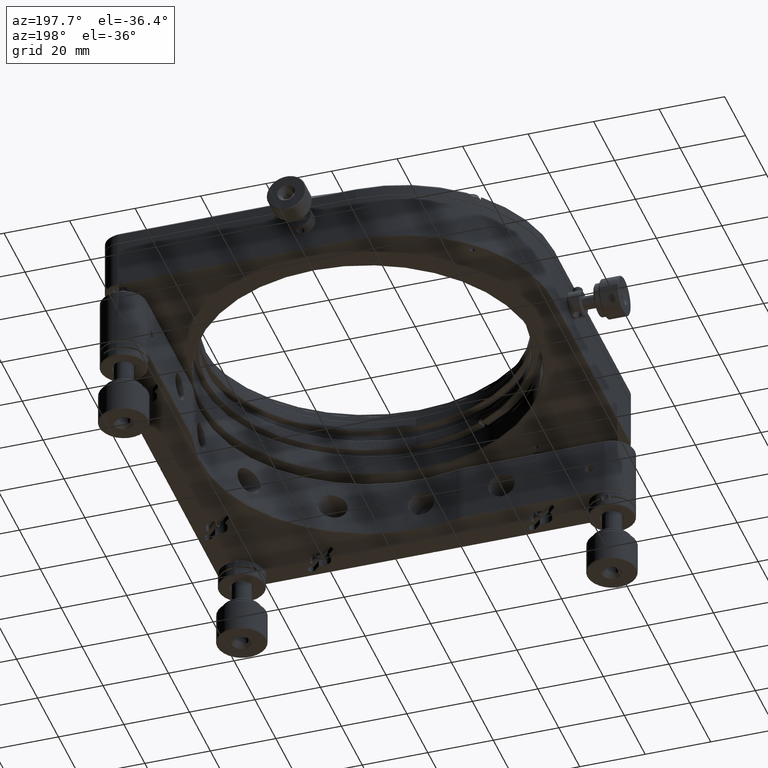
[diagram: clean part render]
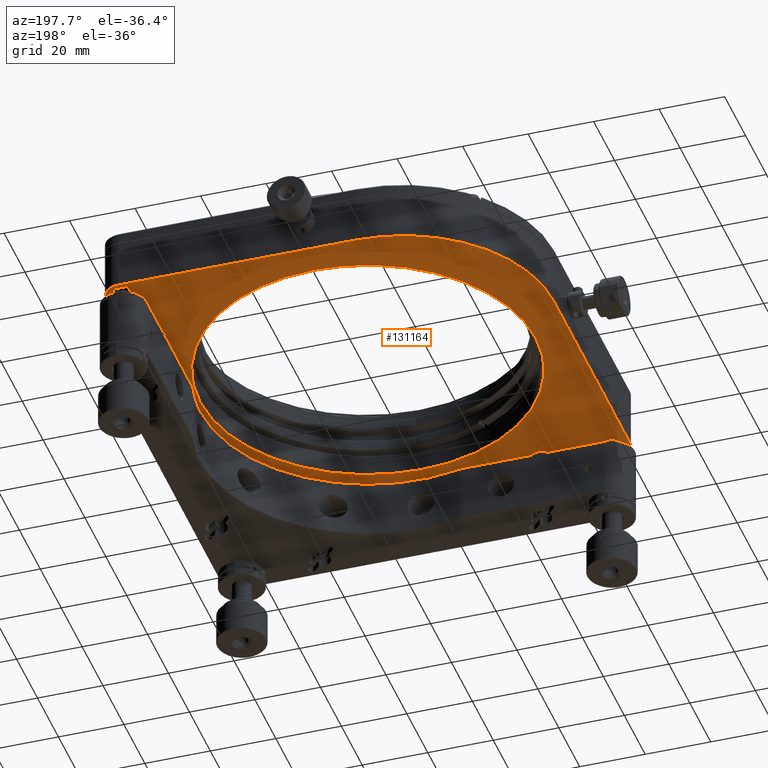
[diagram: same view with one face highlighted and labeled with its STEP entity id]
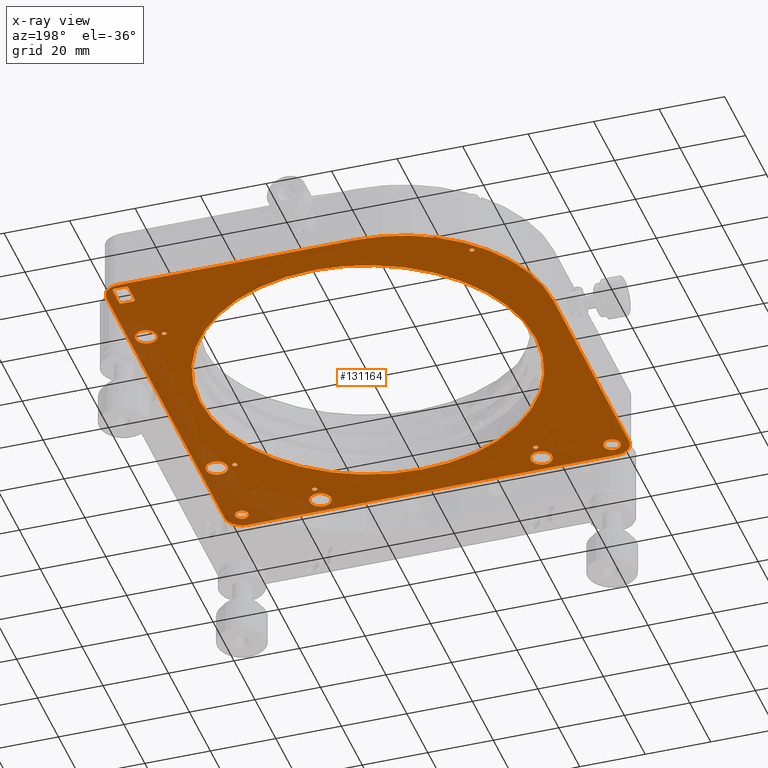
[diagram: x-ray of the same camera — body ghosted, the highlighted face saturated]
A machine part, auxiliary view. The second image highlights one B-rep face of the part: STEP entity #131164.
The next image is the same camera in x-ray: the body ghosted, the highlighted face saturated — about 14% of this face is hidden behind the body in this view.
In plain terms, the highlighted planar face has unit normal (-0, -0, 1).
Its self-contained STEP definition (entity closure, byte-faithful):
#696 = CIRCLE ( 'NONE', #7999, 0.7500000000000006661 ) ;
#2039 = ORIENTED_EDGE ( 'NONE', *, *, #21262, .F. ) ;
#2081 = EDGE_CURVE ( 'NONE', #71721, #77084, #117723, .T. ) ;
#2841 = CARTESIAN_POINT ( 'NONE',  ( 51.74999999999884892, 34.99999999999934630, 12.50000000000000000 ) ) ;
#3177 = ORIENTED_EDGE ( 'NONE', *, *, #132608, .F. ) ;
#4138 = VERTEX_POINT ( 'NONE', #50186 ) ;
#4522 = DIRECTION ( 'NONE',  ( 3.760505654914396745E-17, 1.803624211640625410E-17, -1.000000000000000000 ) ) ;
#4568 = VERTEX_POINT ( 'NONE', #58492 ) ;
#5035 = CIRCLE ( 'NONE', #147081, 3.250000000000002665 ) ;
#5419 = EDGE_CURVE ( 'NONE', #90293, #67386, #82408, .T. ) ;
#5590 = VECTOR ( 'NONE', #115009, 1000.000000000000000 ) ;
#6450 = ORIENTED_EDGE ( 'NONE', *, *, #120307, .F. ) ;
#6684 = FACE_BOUND ( 'NONE', #83844, .T. ) ;
#6895 = CARTESIAN_POINT ( 'NONE',  ( 51.74999999999882760, -32.50000000000066080, 12.50000000000000000 ) ) ;
#7999 = AXIS2_PLACEMENT_3D ( 'NONE', #46672, #11373, #140247 ) ;
#8040 = DIRECTION ( 'NONE',  ( 5.072290865429261076E-17, 1.690763621809753487E-17, -1.000000000000000000 ) ) ;
#8353 = CIRCLE ( 'NONE', #50026, 3.250000000000002665 ) ;
#8567 = DIRECTION ( 'NONE',  ( 3.760505654914396745E-17, 1.803624211640625410E-17, -1.000000000000000000 ) ) ;
#9102 = LINE ( 'NONE', #55914, #5590 ) ;
#9220 = AXIS2_PLACEMENT_3D ( 'NONE', #146763, #144525, #111510 ) ;
#9304 = CARTESIAN_POINT ( 'NONE',  ( 32.49999999999882760, -51.00000000000064659, 12.49999999999999822 ) ) ;
#10232 = CARTESIAN_POINT ( 'NONE',  ( 35.74999999999883471, -56.50000000000065370, 12.49999999999999822 ) ) ;
#10856 = ORIENTED_EDGE ( 'NONE', *, *, #77454, .F. ) ;
#11177 = CARTESIAN_POINT ( 'NONE',  ( 59.74999999999882760, -32.50000000000066791, 12.50000000000000000 ) ) ;
#11350 = AXIS2_PLACEMENT_3D ( 'NONE', #93955, #12616, #36380 ) ;
#11373 = DIRECTION ( 'NONE',  ( 3.760505654914396745E-17, 1.803624211640625410E-17, -1.000000000000000000 ) ) ;
#12058 = DIRECTION ( 'NONE',  ( 1.000000000000000000, 0.000000000000000000, 0.000000000000000000 ) ) ;
#12616 = DIRECTION ( 'NONE',  ( 3.760505654914396745E-17, 1.803624211640625410E-17, -1.000000000000000000 ) ) ;
#13039 = DIRECTION ( 'NONE',  ( 1.000000000000000000, 0.000000000000000000, 0.000000000000000000 ) ) ;
#13630 = DIRECTION ( 'NONE',  ( -1.000000000000000000, 0.000000000000000000, 0.000000000000000000 ) ) ;
#14341 = CARTESIAN_POINT ( 'NONE',  ( 58.09999999999885745, 53.52499999999934488, 12.50000000000000178 ) ) ;
#14555 = CARTESIAN_POINT ( 'NONE',  ( -46.70000000000114682, 46.69999999999934914, 12.49999999999999645 ) ) ;
#14686 = AXIS2_PLACEMENT_3D ( 'NONE', #100605, #90590, #67594 ) ;
#15570 = VERTEX_POINT ( 'NONE', #77520 ) ;
#15842 = CARTESIAN_POINT ( 'NONE',  ( -34.25000000000117950, -51.00000000000064659, 12.49999999999999645 ) ) ;
#16319 = ORIENTED_EDGE ( 'NONE', *, *, #144972, .T. ) ;
#17518 = CARTESIAN_POINT ( 'NONE',  ( -59.05000000000116955, -56.50000000000063949, 12.49999999999999467 ) ) ;
#17750 = ORIENTED_EDGE ( 'NONE', *, *, #61712, .F. ) ;
#17901 = VECTOR ( 'NONE', #25641, 1000.000000000000000 ) ;
#18230 = FACE_BOUND ( 'NONE', #92294, .T. ) ;
#18467 = DIRECTION ( 'NONE',  ( -1.000000000000000000, 0.000000000000000000, 0.000000000000000000 ) ) ;
#19164 = ORIENTED_EDGE ( 'NONE', *, *, #151548, .F. ) ;
#20073 = CARTESIAN_POINT ( 'NONE',  ( 50.99999999999882050, -32.50000000000066080, 12.50000000000000000 ) ) ;
#20377 = DIRECTION ( 'NONE',  ( 0.000000000000000000, 0.000000000000000000, -1.000000000000000000 ) ) ;
#20689 = EDGE_CURVE ( 'NONE', #35186, #51202, #104125, .T. ) ;
#20829 = CARTESIAN_POINT ( 'NONE',  ( -1.169209244415972068E-12, 60.24999999999934630, 12.50000000000000000 ) ) ;
#21050 = DIRECTION ( 'NONE',  ( -1.000000000000000000, -0.000000000000000000, -3.760505654914397361E-17 ) ) ;
#21262 = EDGE_CURVE ( 'NONE', #41717, #50787, #116399, .T. ) ;
#22140 = CIRCLE ( 'NONE', #53879, 0.7749999999999979128 ) ;
#25641 = DIRECTION ( 'NONE',  ( -1.000000000000000000, -0.000000000000000000, -3.760505654914397361E-17 ) ) ;
#25961 = CARTESIAN_POINT ( 'NONE',  ( -53.95000000000116103, -56.50000000000063949, 12.49999999999999467 ) ) ;
#26557 = DIRECTION ( 'NONE',  ( 3.760505654914396745E-17, 1.803624211640625410E-17, -1.000000000000000000 ) ) ;
#26843 = EDGE_CURVE ( 'NONE', #4138, #54800, #91624, .T. ) ;
#26966 = CIRCLE ( 'NONE', #61278, 0.7500000000000006661 ) ;
#27394 = DIRECTION ( 'NONE',  ( 1.000000000000000000, 0.000000000000000000, 0.000000000000000000 ) ) ;
#27583 = CARTESIAN_POINT ( 'NONE',  ( -61.75000000000115818, -6.467126212399266087E-13, 12.49999999999999645 ) ) ;
#28987 = ORIENTED_EDGE ( 'NONE', *, *, #26843, .F. ) ;
#29601 = DIRECTION ( 'NONE',  ( 3.760505654914396745E-17, 1.803624211640625410E-17, -1.000000000000000000 ) ) ;
#30208 = EDGE_CURVE ( 'NONE', #35336, #112305, #146569, .T. ) ;
#30534 = EDGE_LOOP ( 'NONE', ( #16319, #126844, #62195, #116744, #74276, #77548, #136042, #99902 ) ) ;
#31053 = ORIENTED_EDGE ( 'NONE', *, *, #137454, .F. ) ;
#31085 = DIRECTION ( 'NONE',  ( -1.000000000000000000, 0.000000000000000000, -6.763054487239013946E-17 ) ) ;
#31430 = CARTESIAN_POINT ( 'NONE',  ( 59.74999999999885603, 34.99999999999934630, 12.50000000000000178 ) ) ;
#32735 = FACE_BOUND ( 'NONE', #113256, .T. ) ;
#33376 = VERTEX_POINT ( 'NONE', #2841 ) ;
#33399 = LINE ( 'NONE', #101708, #103694 ) ;
#33471 = EDGE_LOOP ( 'NONE', ( #146985, #19164 ) ) ;
#34392 = VERTEX_POINT ( 'NONE', #87049 ) ;
#34717 = CARTESIAN_POINT ( 'NONE',  ( -56.50000000000116529, -61.74999999998030376, 12.49999999997966249 ) ) ;
#35186 = VERTEX_POINT ( 'NONE', #92308 ) ;
#35336 = VERTEX_POINT ( 'NONE', #53704 ) ;
#35364 = VERTEX_POINT ( 'NONE', #31430 ) ;
#35916 = EDGE_CURVE ( 'NONE', #34392, #144041, #73278, .T. ) ;
#36380 = DIRECTION ( 'NONE',  ( -1.000000000000000000, 0.000000000000000000, 0.000000000000000000 ) ) ;
#36557 = DIRECTION ( 'NONE',  ( 3.760505654914396745E-17, 1.803624211640625410E-17, -1.000000000000000000 ) ) ;
#37469 = AXIS2_PLACEMENT_3D ( 'NONE', #49418, #85495, #143012 ) ;
#38011 = EDGE_CURVE ( 'NONE', #67386, #90293, #696, .T. ) ;
#38070 = DIRECTION ( 'NONE',  ( -1.000000000000000000, 0.000000000000000000, 0.000000000000000000 ) ) ;
#38305 = CARTESIAN_POINT ( 'NONE',  ( 56.49999999999882760, 56.49999999999934630, 12.49999999995978683 ) ) ;
#38753 = ORIENTED_EDGE ( 'NONE', *, *, #56141, .F. ) ;
#38890 = CARTESIAN_POINT ( 'NONE',  ( 54.89999999999884750, 59.47499999999934772, 12.50000000000000178 ) ) ;
#39803 = DIRECTION ( 'NONE',  ( 1.000000000000000000, 0.000000000000000000, 0.000000000000000000 ) ) ;
#39882 = DIRECTION ( 'NONE',  ( 3.760505654914396745E-17, 1.803624211640625410E-17, -1.000000000000000000 ) ) ;
#39965 = VERTEX_POINT ( 'NONE', #10232 ) ;
#40537 = DIRECTION ( 'NONE',  ( -1.000000000000000000, 0.000000000000000000, 0.000000000000000000 ) ) ;
#40572 = DIRECTION ( 'NONE',  ( 1.000000000000000000, 0.000000000000000000, 0.000000000000000000 ) ) ;
#41717 = VERTEX_POINT ( 'NONE', #124427 ) ;
#41841 = ORIENTED_EDGE ( 'NONE', *, *, #121561, .F. ) ;
#41923 = CARTESIAN_POINT ( 'NONE',  ( 29.24999999999883116, -56.50000000000065370, 12.49999999999999822 ) ) ;
#41985 = PLANE ( 'NONE',  #81614 ) ;
#42031 = CARTESIAN_POINT ( 'NONE',  ( -35.00000000000117950, -56.50000000000065370, 12.49999999999999645 ) ) ;
#42041 = CIRCLE ( 'NONE', #149811, 0.7500000000000006661 ) ;
#42677 = CIRCLE ( 'NONE', #77009, 0.7749999999999979128 ) ;
#43404 = ORIENTED_EDGE ( 'NONE', *, *, #5419, .F. ) ;
#44186 = EDGE_CURVE ( 'NONE', #50787, #4138, #9102, .T. ) ;
#44265 = FACE_BOUND ( 'NONE', #89072, .T. ) ;
#44477 = VERTEX_POINT ( 'NONE', #25961 ) ;
#45520 = CARTESIAN_POINT ( 'NONE',  ( -16.00000000000116174, 15.99999999999933387, 12.50000000000001066 ) ) ;
#46672 = CARTESIAN_POINT ( 'NONE',  ( -35.00000000000117950, -51.00000000000064659, 12.49999999999999645 ) ) ;
#47171 = CIRCLE ( 'NONE', #56905, 0.7500000000000006661 ) ;
#48078 = CARTESIAN_POINT ( 'NONE',  ( 50.99999999999882050, -32.50000000000066080, 12.50000000000000000 ) ) ;
#49418 = CARTESIAN_POINT ( 'NONE',  ( 56.49999999999883471, -56.50000000000065370, 12.50000000001617195 ) ) ;
#49984 = EDGE_LOOP ( 'NONE', ( #10856, #95004 ) ) ;
#50026 = AXIS2_PLACEMENT_3D ( 'NONE', #75681, #29601, #61901 ) ;
#50127 = DIRECTION ( 'NONE',  ( 1.000000000000000000, 0.000000000000000000, 0.000000000000000000 ) ) ;
#50186 = CARTESIAN_POINT ( 'NONE',  ( 56.49999999999882760, -61.74999999998548361, 12.49999999997682210 ) ) ;
#50240 = AXIS2_PLACEMENT_3D ( 'NONE', #52065, #98903, #40572 ) ;
#50461 = VERTEX_POINT ( 'NONE', #6895 ) ;
#50521 = EDGE_CURVE ( 'NONE', #66843, #44477, #128072, .T. ) ;
#50609 = LINE ( 'NONE', #27583, #127155 ) ;
#50665 = VERTEX_POINT ( 'NONE', #101097 ) ;
#50787 = VERTEX_POINT ( 'NONE', #34717 ) ;
#51001 = EDGE_CURVE ( 'NONE', #54800, #35186, #33399, .T. ) ;
#51168 = ORIENTED_EDGE ( 'NONE', *, *, #82348, .F. ) ;
#51202 = VERTEX_POINT ( 'NONE', #127783 ) ;
#52065 = CARTESIAN_POINT ( 'NONE',  ( -56.50000000000116529, -56.50000000000065370, 12.49999999995932853 ) ) ;
#52375 = DIRECTION ( 'NONE',  ( -1.000000000000000000, 0.000000000000000000, 0.000000000000000000 ) ) ;
#52739 = ORIENTED_EDGE ( 'NONE', *, *, #108289, .F. ) ;
#52748 = FACE_BOUND ( 'NONE', #70598, .T. ) ;
#52848 = DIRECTION ( 'NONE',  ( 6.782539047215093394E-34, -1.000000000000000000, -1.803624211640625410E-17 ) ) ;
#53416 = EDGE_CURVE ( 'NONE', #106933, #86635, #47171, .T. ) ;
#53496 = FACE_OUTER_BOUND ( 'NONE', #100986, .T. ) ;
#53621 = CARTESIAN_POINT ( 'NONE',  ( 54.50000000004612843, -56.50000000000065370, 12.50000000001617195 ) ) ;
#53704 = CARTESIAN_POINT ( 'NONE',  ( 53.24999999999882050, -32.50000000000066791, 12.50000000000000000 ) ) ;
#53879 = AXIS2_PLACEMENT_3D ( 'NONE', #133920, #146165, #121666 ) ;
#54015 = ORIENTED_EDGE ( 'NONE', *, *, #51001, .F. ) ;
#54076 = AXIS2_PLACEMENT_3D ( 'NONE', #88831, #54274, #40537 ) ;
#54274 = DIRECTION ( 'NONE',  ( 3.760505654914396745E-17, 1.803624211640625410E-17, -1.000000000000000000 ) ) ;
#54290 = DIRECTION ( 'NONE',  ( -1.000000000000000000, 0.000000000000000000, 0.000000000000000000 ) ) ;
#54800 = VERTEX_POINT ( 'NONE', #128665 ) ;
#54886 = DIRECTION ( 'NONE',  ( -6.782539047215093394E-34, 1.000000000000000000, 1.803624211640625410E-17 ) ) ;
#55914 = CARTESIAN_POINT ( 'NONE',  ( -1.169209244415972068E-12, -61.75000000000064659, 12.49999999999999645 ) ) ;
#56141 = EDGE_CURVE ( 'NONE', #144041, #34392, #86631, .T. ) ;
#56905 = AXIS2_PLACEMENT_3D ( 'NONE', #14555, #4522, #39803 ) ;
#57424 = EDGE_CURVE ( 'NONE', #139144, #39965, #8353, .T. ) ;
#57717 = VERTEX_POINT ( 'NONE', #150755 ) ;
#57859 = EDGE_CURVE ( 'NONE', #4568, #57717, #133377, .T. ) ;
#58013 = CARTESIAN_POINT ( 'NONE',  ( 56.49999999999883471, -56.50000000000065370, 12.49999999995932853 ) ) ;
#58050 = CARTESIAN_POINT ( 'NONE',  ( 56.49999999999884892, 34.99999999999934630, 12.50000000000000178 ) ) ;
#58313 = AXIS2_PLACEMENT_3D ( 'NONE', #67206, #20377, #102481 ) ;
#58492 = CARTESIAN_POINT ( 'NONE',  ( 51.29999999999881766, -6.251569071759318264E-13, 12.50000000000000000 ) ) ;
#58527 = ORIENTED_EDGE ( 'NONE', *, *, #35916, .F. ) ;
#59831 = CARTESIAN_POINT ( 'NONE',  ( 50.99999999999884182, 34.99999999999934630, 12.50000000000000000 ) ) ;
#61260 = CIRCLE ( 'NONE', #14686, 3.250000000000002665 ) ;
#61278 = AXIS2_PLACEMENT_3D ( 'NONE', #84694, #143721, #50127 ) ;
#61712 = EDGE_CURVE ( 'NONE', #44477, #66843, #77941, .T. ) ;
#61901 = DIRECTION ( 'NONE',  ( -1.000000000000000000, 0.000000000000000000, 0.000000000000000000 ) ) ;
#62137 = VECTOR ( 'NONE', #115205, 1000.000000000000000 ) ;
#62195 = ORIENTED_EDGE ( 'NONE', *, *, #134140, .T. ) ;
#63337 = EDGE_LOOP ( 'NONE', ( #102430, #112656 ) ) ;
#64007 = ORIENTED_EDGE ( 'NONE', *, *, #44186, .F. ) ;
#64319 = ORIENTED_EDGE ( 'NONE', *, *, #136297, .F. ) ;
#64352 = ORIENTED_EDGE ( 'NONE', *, *, #30208, .F. ) ;
#64619 = VECTOR ( 'NONE', #21050, 1000.000000000000000 ) ;
#65402 = AXIS2_PLACEMENT_3D ( 'NONE', #38890, #85745, #27394 ) ;
#66372 = CIRCLE ( 'NONE', #54076, 0.7500000000000006661 ) ;
#66535 = DIRECTION ( 'NONE',  ( 1.000000000000000000, 0.000000000000000000, 3.760505654914397361E-17 ) ) ;
#66843 = VERTEX_POINT ( 'NONE', #17518 ) ;
#66894 = CARTESIAN_POINT ( 'NONE',  ( 54.89999999999884750, 52.74999999999934630, 12.50000000000000178 ) ) ;
#67083 = CARTESIAN_POINT ( 'NONE',  ( 54.12499999999884892, -6.467126212399266087E-13, 12.50000000000000000 ) ) ;
#67206 = CARTESIAN_POINT ( 'NONE',  ( 56.49999999999883471, -56.50000000000065370, 12.50000000001617195 ) ) ;
#67386 = VERTEX_POINT ( 'NONE', #15842 ) ;
#67594 = DIRECTION ( 'NONE',  ( -1.000000000000000000, 0.000000000000000000, 0.000000000000000000 ) ) ;
#67797 = DIRECTION ( 'NONE',  ( 1.000000000000000000, 0.000000000000000000, 3.791745302681544841E-17 ) ) ;
#70598 = EDGE_LOOP ( 'NONE', ( #43404, #141139 ) ) ;
#71071 = DIRECTION ( 'NONE',  ( 1.000000000000000000, 0.000000000000000000, 0.000000000000000000 ) ) ;
#71208 = CARTESIAN_POINT ( 'NONE',  ( -35.00000000000117950, -56.50000000000065370, 12.49999999999999645 ) ) ;
#71523 = CARTESIAN_POINT ( 'NONE',  ( -35.75000000000118661, -51.00000000000064659, 12.49999999999999645 ) ) ;
#71570 = EDGE_CURVE ( 'NONE', #113023, #107901, #77509, .T. ) ;
#71721 = VERTEX_POINT ( 'NONE', #143770 ) ;
#71954 = EDGE_CURVE ( 'NONE', #131006, #116419, #113346, .T. ) ;
#72062 = ORIENTED_EDGE ( 'NONE', *, *, #50521, .F. ) ;
#73018 = CARTESIAN_POINT ( 'NONE',  ( 50.24999999999882050, -32.50000000000066080, 12.50000000000000000 ) ) ;
#73278 = CIRCLE ( 'NONE', #127100, 3.250000000000002665 ) ;
#74276 = ORIENTED_EDGE ( 'NONE', *, *, #145905, .T. ) ;
#75073 = AXIS2_PLACEMENT_3D ( 'NONE', #86073, #147334, #18467 ) ;
#75681 = CARTESIAN_POINT ( 'NONE',  ( 32.49999999999883471, -56.50000000000065370, 12.49999999999999822 ) ) ;
#75868 = DIRECTION ( 'NONE',  ( 3.760505654914396745E-17, 1.803624211640625410E-17, -1.000000000000000000 ) ) ;
#76198 = LINE ( 'NONE', #122960, #146132 ) ;
#77009 = AXIS2_PLACEMENT_3D ( 'NONE', #14341, #117177, #12058 ) ;
#77084 = VERTEX_POINT ( 'NONE', #66894 ) ;
#77454 = EDGE_CURVE ( 'NONE', #107901, #113023, #128274, .T. ) ;
#77509 = CIRCLE ( 'NONE', #11350, 0.7500000000000006661 ) ;
#77520 = CARTESIAN_POINT ( 'NONE',  ( -16.00000000000116174, 61.74999999999933209, 12.50000000000000711 ) ) ;
#77521 = EDGE_CURVE ( 'NONE', #121969, #50665, #114430, .T. ) ;
#77548 = ORIENTED_EDGE ( 'NONE', *, *, #77521, .F. ) ;
#77941 = CIRCLE ( 'NONE', #9220, 2.550000000000003819 ) ;
#78736 = VERTEX_POINT ( 'NONE', #73018 ) ;
#78813 = FACE_BOUND ( 'NONE', #81802, .T. ) ;
#79195 = DIRECTION ( 'NONE',  ( 6.782539047215093394E-34, -1.000000000000000000, -1.803624211640625410E-17 ) ) ;
#80228 = ORIENTED_EDGE ( 'NONE', *, *, #148432, .F. ) ;
#80693 = EDGE_LOOP ( 'NONE', ( #38753, #58527 ) ) ;
#81614 = AXIS2_PLACEMENT_3D ( 'NONE', #148578, #88790, #66535 ) ;
#81802 = EDGE_LOOP ( 'NONE', ( #64352, #51168 ) ) ;
#82214 = CARTESIAN_POINT ( 'NONE',  ( -38.25000000000118661, -56.50000000000065370, 12.49999999999999645 ) ) ;
#82348 = EDGE_CURVE ( 'NONE', #112305, #35336, #61260, .T. ) ;
#82408 = CIRCLE ( 'NONE', #75073, 0.7500000000000006661 ) ;
#83844 = EDGE_LOOP ( 'NONE', ( #80228, #52739 ) ) ;
#84694 = CARTESIAN_POINT ( 'NONE',  ( -46.70000000000114682, 46.69999999999934914, 12.49999999999999645 ) ) ;
#85495 = DIRECTION ( 'NONE',  ( 0.000000000000000000, 0.000000000000000000, -1.000000000000000000 ) ) ;
#85745 = DIRECTION ( 'NONE',  ( -3.760505654914396745E-17, -1.803624211640625410E-17, 1.000000000000000000 ) ) ;
#86073 = CARTESIAN_POINT ( 'NONE',  ( -35.00000000000117950, -51.00000000000064659, 12.49999999999999645 ) ) ;
#86631 = CIRCLE ( 'NONE', #111142, 3.250000000000002665 ) ;
#86635 = VERTEX_POINT ( 'NONE', #88611 ) ;
#86669 = AXIS2_PLACEMENT_3D ( 'NONE', #9304, #125947, #92190 ) ;
#87049 = CARTESIAN_POINT ( 'NONE',  ( -31.75000000000117950, -56.50000000000065370, 12.49999999999999645 ) ) ;
#87090 = VERTEX_POINT ( 'NONE', #102373 ) ;
#88611 = CARTESIAN_POINT ( 'NONE',  ( -45.95000000000114682, 46.69999999999934914, 12.49999999999999645 ) ) ;
#88790 = DIRECTION ( 'NONE',  ( -3.760505654914397361E-17, -1.803624211640625410E-17, 1.000000000000000000 ) ) ;
#88831 = CARTESIAN_POINT ( 'NONE',  ( 50.99999999999884182, 34.99999999999934630, 12.50000000000000000 ) ) ;
#89072 = EDGE_LOOP ( 'NONE', ( #135756, #41841 ) ) ;
#89456 = CARTESIAN_POINT ( 'NONE',  ( 58.87499999999884182, 59.47499999999934772, 12.50000000000000178 ) ) ;
#89817 = CIRCLE ( 'NONE', #129058, 0.7500000000000006661 ) ;
#90293 = VERTEX_POINT ( 'NONE', #71523 ) ;
#90303 = FACE_BOUND ( 'NONE', #80693, .T. ) ;
#90449 = DIRECTION ( 'NONE',  ( 0.000000000000000000, 0.000000000000000000, 1.000000000000000000 ) ) ;
#90590 = DIRECTION ( 'NONE',  ( 3.760505654914396745E-17, 1.803624211640625410E-17, -1.000000000000000000 ) ) ;
#90925 = CARTESIAN_POINT ( 'NONE',  ( -1.177882861795856104E-12, -6.314393452555577824E-13, 12.49999999999999645 ) ) ;
#91624 = CIRCLE ( 'NONE', #118597, 5.250000000046384230 ) ;
#92190 = DIRECTION ( 'NONE',  ( -1.000000000000000000, 0.000000000000000000, 0.000000000000000000 ) ) ;
#92294 = EDGE_LOOP ( 'NONE', ( #64319, #115637 ) ) ;
#92308 = CARTESIAN_POINT ( 'NONE',  ( 61.74999999997871925, 56.49999999999933920, 12.49999999997989519 ) ) ;
#92939 = DIRECTION ( 'NONE',  ( 5.072290865429261076E-17, 1.690763621809753487E-17, -1.000000000000000000 ) ) ;
#93955 = CARTESIAN_POINT ( 'NONE',  ( 32.49999999999882760, -51.00000000000064659, 12.49999999999999822 ) ) ;
#94447 = DIRECTION ( 'NONE',  ( -1.000000000000000000, 0.000000000000000000, -6.763054487239013946E-17 ) ) ;
#94874 = ORIENTED_EDGE ( 'NONE', *, *, #124537, .F. ) ;
#94955 = ORIENTED_EDGE ( 'NONE', *, *, #20689, .F. ) ;
#95004 = ORIENTED_EDGE ( 'NONE', *, *, #71570, .F. ) ;
#95660 = EDGE_CURVE ( 'NONE', #124963, #33376, #124636, .T. ) ;
#95883 = DIRECTION ( 'NONE',  ( -1.000000000000000000, 0.000000000000000000, 0.000000000000000000 ) ) ;
#96182 = CARTESIAN_POINT ( 'NONE',  ( 31.74999999999882760, -51.00000000000064659, 12.49999999999999822 ) ) ;
#96383 = DIRECTION ( 'NONE',  ( -1.000000000000000000, 0.000000000000000000, 0.000000000000000000 ) ) ;
#97950 = CIRCLE ( 'NONE', #134719, 0.7749999999999979128 ) ;
#98148 = AXIS2_PLACEMENT_3D ( 'NONE', #133510, #39882, #98976 ) ;
#98625 = AXIS2_PLACEMENT_3D ( 'NONE', #115827, #105833, #141115 ) ;
#98903 = DIRECTION ( 'NONE',  ( 0.000000000000000000, 0.000000000000000000, 1.000000000000000000 ) ) ;
#98976 = DIRECTION ( 'NONE',  ( -1.000000000000000000, 0.000000000000000000, 0.000000000000000000 ) ) ;
#99386 = EDGE_CURVE ( 'NONE', #121969, #143222, #119416, .T. ) ;
#99579 = FACE_BOUND ( 'NONE', #136657, .T. ) ;
#99749 = DIRECTION ( 'NONE',  ( 3.760505654914396745E-17, 1.803624211640625410E-17, -1.000000000000000000 ) ) ;
#99902 = ORIENTED_EDGE ( 'NONE', *, *, #129327, .F. ) ;
#99952 = VERTEX_POINT ( 'NONE', #89456 ) ;
#100329 = FACE_BOUND ( 'NONE', #49984, .T. ) ;
#100605 = CARTESIAN_POINT ( 'NONE',  ( 56.49999999999882050, -32.50000000000066791, 12.50000000000000000 ) ) ;
#100986 = EDGE_LOOP ( 'NONE', ( #28987, #64007, #2039, #105791, #31053, #3177, #94955, #54015 ) ) ;
#101097 = CARTESIAN_POINT ( 'NONE',  ( 58.09999999999885745, 60.24999999999934630, 12.50000000000000178 ) ) ;
#101708 = CARTESIAN_POINT ( 'NONE',  ( 61.74999999999882760, -6.467126212399266087E-13, 12.50000000000000000 ) ) ;
#102202 = CIRCLE ( 'NONE', #129168, 45.75000000000000711 ) ;
#102373 = CARTESIAN_POINT ( 'NONE',  ( 58.87499999999884182, 53.52499999999934488, 12.50000000000000000 ) ) ;
#102394 = CARTESIAN_POINT ( 'NONE',  ( -61.75000000000116529, 15.99999999999933387, 12.50000000000000355 ) ) ;
#102430 = ORIENTED_EDGE ( 'NONE', *, *, #57424, .F. ) ;
#102481 = DIRECTION ( 'NONE',  ( -1.000000000000000000, 0.000000000000000000, 0.000000000000000000 ) ) ;
#102652 = ORIENTED_EDGE ( 'NONE', *, *, #57859, .F. ) ;
#103694 = VECTOR ( 'NONE', #54886, 1000.000000000000000 ) ;
#103895 = DIRECTION ( 'NONE',  ( -6.782539047215093394E-34, 1.000000000000000000, 1.803624211640625410E-17 ) ) ;
#104125 = CIRCLE ( 'NONE', #123720, 5.250000000046384230 ) ;
#104320 = EDGE_CURVE ( 'NONE', #111899, #41717, #50609, .T. ) ;
#104357 = ORIENTED_EDGE ( 'NONE', *, *, #53416, .F. ) ;
#105791 = ORIENTED_EDGE ( 'NONE', *, *, #104320, .F. ) ;
#105833 = DIRECTION ( 'NONE',  ( 3.760505654914396745E-17, 1.803624211640625410E-17, -1.000000000000000000 ) ) ;
#106933 = VERTEX_POINT ( 'NONE', #131835 ) ;
#107901 = VERTEX_POINT ( 'NONE', #96182 ) ;
#108280 = LINE ( 'NONE', #126168, #64619 ) ;
#108289 = EDGE_CURVE ( 'NONE', #50461, #78736, #89817, .T. ) ;
#108539 = EDGE_CURVE ( 'NONE', #99952, #87090, #76198, .T. ) ;
#108847 = DIRECTION ( 'NONE',  ( 1.000000000000000000, 0.000000000000000000, 0.000000000000000000 ) ) ;
#109935 = CARTESIAN_POINT ( 'NONE',  ( 53.24999999999884892, 34.99999999999934630, 12.50000000000000178 ) ) ;
#110142 = CARTESIAN_POINT ( 'NONE',  ( 54.12499999999884892, 53.52499999999934488, 12.50000000000000000 ) ) ;
#110319 = CIRCLE ( 'NONE', #98148, 3.250000000000002665 ) ;
#111142 = AXIS2_PLACEMENT_3D ( 'NONE', #42031, #75868, #144150 ) ;
#111510 = DIRECTION ( 'NONE',  ( -1.000000000000000000, 0.000000000000000000, 0.000000000000000000 ) ) ;
#111832 = DIRECTION ( 'NONE',  ( -3.760505654914396745E-17, -1.803624211640625410E-17, 1.000000000000000000 ) ) ;
#111899 = VERTEX_POINT ( 'NONE', #102394 ) ;
#112305 = VERTEX_POINT ( 'NONE', #11177 ) ;
#112656 = ORIENTED_EDGE ( 'NONE', *, *, #144136, .F. ) ;
#113023 = VERTEX_POINT ( 'NONE', #121588 ) ;
#113256 = EDGE_LOOP ( 'NONE', ( #72062, #17750 ) ) ;
#113346 = CIRCLE ( 'NONE', #37469, 1.999999999952706276 ) ;
#114058 = FACE_BOUND ( 'NONE', #30534, .T. ) ;
#114115 = DIRECTION ( 'NONE',  ( 3.760505654914396745E-17, 1.803624211640625410E-17, -1.000000000000000000 ) ) ;
#114430 = LINE ( 'NONE', #20829, #62137 ) ;
#115009 = DIRECTION ( 'NONE',  ( 1.000000000000000000, 0.000000000000000000, 3.760505654914397361E-17 ) ) ;
#115205 = DIRECTION ( 'NONE',  ( 1.000000000000000000, 0.000000000000000000, 3.760505654914397361E-17 ) ) ;
#115339 = DIRECTION ( 'NONE',  ( -5.656706986880894093E-17, 0.000000000000000000, 1.000000000000000000 ) ) ;
#115637 = ORIENTED_EDGE ( 'NONE', *, *, #71954, .F. ) ;
#115827 = CARTESIAN_POINT ( 'NONE',  ( -56.50000000000116529, -56.50000000000063949, 12.49999999999999467 ) ) ;
#116168 = LINE ( 'NONE', #67083, #130442 ) ;
#116399 = CIRCLE ( 'NONE', #50240, 5.250000000046384230 ) ;
#116419 = VERTEX_POINT ( 'NONE', #53621 ) ;
#116744 = ORIENTED_EDGE ( 'NONE', *, *, #108539, .F. ) ;
#116769 = VERTEX_POINT ( 'NONE', #109935 ) ;
#117177 = DIRECTION ( 'NONE',  ( -3.760505654914396745E-17, -1.803624211640625410E-17, 1.000000000000000000 ) ) ;
#117382 = DIRECTION ( 'NONE',  ( 3.760505654914396745E-17, 1.803624211640625410E-17, -1.000000000000000000 ) ) ;
#117723 = LINE ( 'NONE', #141482, #17901 ) ;
#118597 = AXIS2_PLACEMENT_3D ( 'NONE', #58013, #90449, #71071 ) ;
#118738 = DIRECTION ( 'NONE',  ( 3.760505654914396745E-17, 1.803624211640625410E-17, -1.000000000000000000 ) ) ;
#119288 = VERTEX_POINT ( 'NONE', #110142 ) ;
#119416 = CIRCLE ( 'NONE', #65402, 0.7749999999999979128 ) ;
#119859 = AXIS2_PLACEMENT_3D ( 'NONE', #59831, #117382, #95883 ) ;
#120307 = EDGE_CURVE ( 'NONE', #86635, #106933, #26966, .T. ) ;
#121561 = EDGE_CURVE ( 'NONE', #35364, #116769, #5035, .T. ) ;
#121588 = CARTESIAN_POINT ( 'NONE',  ( 33.24999999999882760, -51.00000000000064659, 12.49999999999999822 ) ) ;
#121666 = DIRECTION ( 'NONE',  ( 1.000000000000000000, 0.000000000000000000, 0.000000000000000000 ) ) ;
#121723 = CIRCLE ( 'NONE', #58313, 1.999999999952706276 ) ;
#121969 = VERTEX_POINT ( 'NONE', #123465 ) ;
#122960 = CARTESIAN_POINT ( 'NONE',  ( 58.87499999999884182, -6.467126212399266087E-13, 12.50000000000000000 ) ) ;
#123465 = CARTESIAN_POINT ( 'NONE',  ( 54.89999999999884750, 60.24999999999934630, 12.50000000000000178 ) ) ;
#123720 = AXIS2_PLACEMENT_3D ( 'NONE', #38305, #141145, #13039 ) ;
#124427 = CARTESIAN_POINT ( 'NONE',  ( -61.74999999998587441, -56.50000000000065370, 12.49999999997682210 ) ) ;
#124537 = EDGE_CURVE ( 'NONE', #57717, #4568, #125056, .T. ) ;
#124636 = CIRCLE ( 'NONE', #119859, 0.7500000000000006661 ) ;
#124859 = AXIS2_PLACEMENT_3D ( 'NONE', #145772, #99749, #133531 ) ;
#124888 = CARTESIAN_POINT ( 'NONE',  ( 56.49999999999882050, -32.50000000000066791, 12.50000000000000000 ) ) ;
#124901 = EDGE_CURVE ( 'NONE', #116769, #35364, #110319, .T. ) ;
#124963 = VERTEX_POINT ( 'NONE', #147991 ) ;
#125056 = CIRCLE ( 'NONE', #147074, 51.29999999999999716 ) ;
#125947 = DIRECTION ( 'NONE',  ( 3.760505654914396745E-17, 1.803624211640625410E-17, -1.000000000000000000 ) ) ;
#126168 = CARTESIAN_POINT ( 'NONE',  ( -1.169209244415972068E-12, 61.74999999999933920, 12.50000000000000000 ) ) ;
#126844 = ORIENTED_EDGE ( 'NONE', *, *, #2081, .F. ) ;
#127100 = AXIS2_PLACEMENT_3D ( 'NONE', #71208, #118738, #13630 ) ;
#127155 = VECTOR ( 'NONE', #52848, 1000.000000000000000 ) ;
#127783 = CARTESIAN_POINT ( 'NONE',  ( 56.49999999999882760, 61.74999999997923794, 12.49999999997989342 ) ) ;
#128072 = CIRCLE ( 'NONE', #98625, 2.550000000000003819 ) ;
#128274 = CIRCLE ( 'NONE', #86669, 0.7500000000000006661 ) ;
#128665 = CARTESIAN_POINT ( 'NONE',  ( 61.74999999997849187, -56.50000000000065370, 12.49999999997966427 ) ) ;
#129058 = AXIS2_PLACEMENT_3D ( 'NONE', #20073, #8567, #52375 ) ;
#129168 = AXIS2_PLACEMENT_3D ( 'NONE', #45520, #115339, #67797 ) ;
#129327 = EDGE_CURVE ( 'NONE', #119288, #143222, #116168, .T. ) ;
#130442 = VECTOR ( 'NONE', #103895, 1000.000000000000000 ) ;
#131006 = VERTEX_POINT ( 'NONE', #134098 ) ;
#131164 = ADVANCED_FACE ( 'NONE', ( #142592, #90303, #100329, #52748, #44265, #78813, #6684, #147097, #18230, #32735, #114058, #99579, #53496, #137082 ), #41985, .F. ) ;
#131835 = CARTESIAN_POINT ( 'NONE',  ( -47.45000000000115392, 46.69999999999934914, 12.49999999999999645 ) ) ;
#132608 = EDGE_CURVE ( 'NONE', #51202, #15570, #108280, .T. ) ;
#132612 = CARTESIAN_POINT ( 'NONE',  ( 54.89999999999884750, 53.52499999999934488, 12.50000000000000178 ) ) ;
#133377 = CIRCLE ( 'NONE', #138266, 51.29999999999999716 ) ;
#133510 = CARTESIAN_POINT ( 'NONE',  ( 56.49999999999884892, 34.99999999999934630, 12.50000000000000178 ) ) ;
#133531 = DIRECTION ( 'NONE',  ( -1.000000000000000000, 0.000000000000000000, 0.000000000000000000 ) ) ;
#133920 = CARTESIAN_POINT ( 'NONE',  ( 58.09999999999885745, 59.47499999999934772, 12.50000000000000178 ) ) ;
#134098 = CARTESIAN_POINT ( 'NONE',  ( 58.49999999995154099, -56.50000000000065370, 12.50000000001617195 ) ) ;
#134140 = EDGE_CURVE ( 'NONE', #71721, #87090, #42677, .T. ) ;
#134719 = AXIS2_PLACEMENT_3D ( 'NONE', #132612, #111832, #108847 ) ;
#135190 = CARTESIAN_POINT ( 'NONE',  ( 54.12499999999884892, 59.47499999999934772, 12.50000000000000178 ) ) ;
#135756 = ORIENTED_EDGE ( 'NONE', *, *, #124901, .F. ) ;
#136042 = ORIENTED_EDGE ( 'NONE', *, *, #99386, .T. ) ;
#136297 = EDGE_CURVE ( 'NONE', #116419, #131006, #121723, .T. ) ;
#136657 = EDGE_LOOP ( 'NONE', ( #6450, #104357 ) ) ;
#137082 = FACE_BOUND ( 'NONE', #144162, .T. ) ;
#137454 = EDGE_CURVE ( 'NONE', #15570, #111899, #102202, .T. ) ;
#138266 = AXIS2_PLACEMENT_3D ( 'NONE', #90925, #8040, #31085 ) ;
#139144 = VERTEX_POINT ( 'NONE', #41923 ) ;
#140247 = DIRECTION ( 'NONE',  ( -1.000000000000000000, 0.000000000000000000, 0.000000000000000000 ) ) ;
#141115 = DIRECTION ( 'NONE',  ( -1.000000000000000000, 0.000000000000000000, 0.000000000000000000 ) ) ;
#141139 = ORIENTED_EDGE ( 'NONE', *, *, #38011, .F. ) ;
#141145 = DIRECTION ( 'NONE',  ( 0.000000000000000000, 0.000000000000000000, 1.000000000000000000 ) ) ;
#141482 = CARTESIAN_POINT ( 'NONE',  ( -1.169209244415972068E-12, 52.74999999999934630, 12.50000000000000000 ) ) ;
#142075 = CIRCLE ( 'NONE', #124859, 3.250000000000002665 ) ;
#142592 = FACE_BOUND ( 'NONE', #63337, .T. ) ;
#143012 = DIRECTION ( 'NONE',  ( -1.000000000000000000, 0.000000000000000000, 0.000000000000000000 ) ) ;
#143222 = VERTEX_POINT ( 'NONE', #135190 ) ;
#143721 = DIRECTION ( 'NONE',  ( 3.760505654914396745E-17, 1.803624211640625410E-17, -1.000000000000000000 ) ) ;
#143770 = CARTESIAN_POINT ( 'NONE',  ( 58.09999999999885745, 52.74999999999934630, 12.50000000000000178 ) ) ;
#144041 = VERTEX_POINT ( 'NONE', #82214 ) ;
#144136 = EDGE_CURVE ( 'NONE', #39965, #139144, #142075, .T. ) ;
#144150 = DIRECTION ( 'NONE',  ( -1.000000000000000000, 0.000000000000000000, 0.000000000000000000 ) ) ;
#144162 = EDGE_LOOP ( 'NONE', ( #94874, #102652 ) ) ;
#144525 = DIRECTION ( 'NONE',  ( 3.760505654914396745E-17, 1.803624211640625410E-17, -1.000000000000000000 ) ) ;
#144972 = EDGE_CURVE ( 'NONE', #119288, #77084, #97950, .T. ) ;
#145772 = CARTESIAN_POINT ( 'NONE',  ( 32.49999999999883471, -56.50000000000065370, 12.49999999999999822 ) ) ;
#145905 = EDGE_CURVE ( 'NONE', #99952, #50665, #22140, .T. ) ;
#146132 = VECTOR ( 'NONE', #79195, 1000.000000000000000 ) ;
#146165 = DIRECTION ( 'NONE',  ( -3.760505654914396745E-17, -1.803624211640625410E-17, 1.000000000000000000 ) ) ;
#146569 = CIRCLE ( 'NONE', #148970, 3.250000000000002665 ) ;
#146763 = CARTESIAN_POINT ( 'NONE',  ( -56.50000000000116529, -56.50000000000063949, 12.49999999999999467 ) ) ;
#146985 = ORIENTED_EDGE ( 'NONE', *, *, #95660, .F. ) ;
#147074 = AXIS2_PLACEMENT_3D ( 'NONE', #151227, #92939, #94447 ) ;
#147081 = AXIS2_PLACEMENT_3D ( 'NONE', #58050, #26557, #96383 ) ;
#147097 = FACE_BOUND ( 'NONE', #33471, .T. ) ;
#147334 = DIRECTION ( 'NONE',  ( 3.760505654914396745E-17, 1.803624211640625410E-17, -1.000000000000000000 ) ) ;
#147991 = CARTESIAN_POINT ( 'NONE',  ( 50.24999999999884182, 34.99999999999934630, 12.50000000000000000 ) ) ;
#148432 = EDGE_CURVE ( 'NONE', #78736, #50461, #42041, .T. ) ;
#148578 = CARTESIAN_POINT ( 'NONE',  ( -1.169209244415972068E-12, -6.467126212399266087E-13, 12.49999999999999822 ) ) ;
#148970 = AXIS2_PLACEMENT_3D ( 'NONE', #124888, #114115, #54290 ) ;
#149811 = AXIS2_PLACEMENT_3D ( 'NONE', #48078, #36557, #38070 ) ;
#150755 = CARTESIAN_POINT ( 'NONE',  ( -51.30000000000117666, -6.314393452555577824E-13, 12.49999999999999289 ) ) ;
#151227 = CARTESIAN_POINT ( 'NONE',  ( -1.177882861795856104E-12, -6.314393452555577824E-13, 12.49999999999999645 ) ) ;
#151548 = EDGE_CURVE ( 'NONE', #33376, #124963, #66372, .T. ) ;